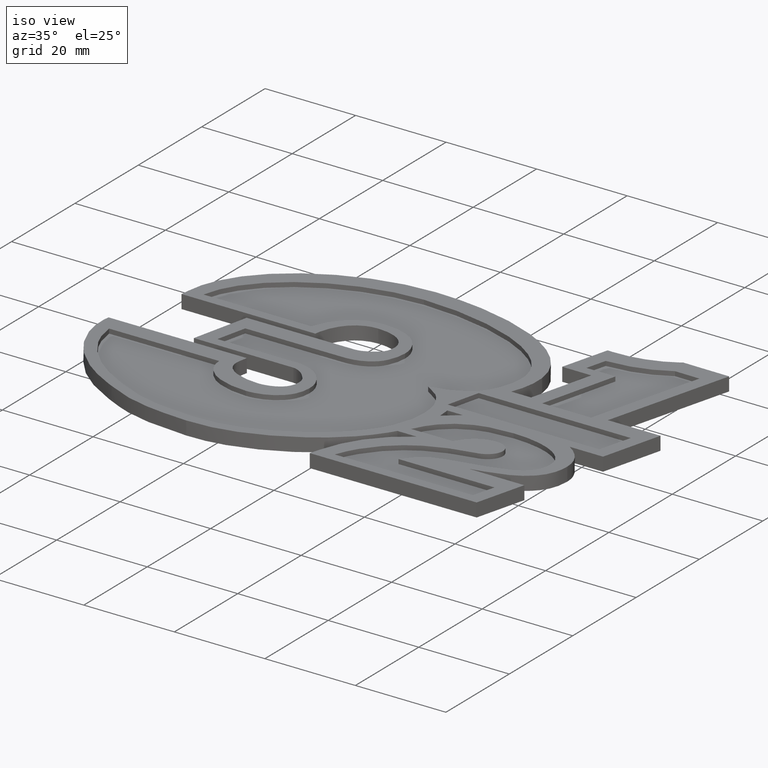
[diagram: clean part render]
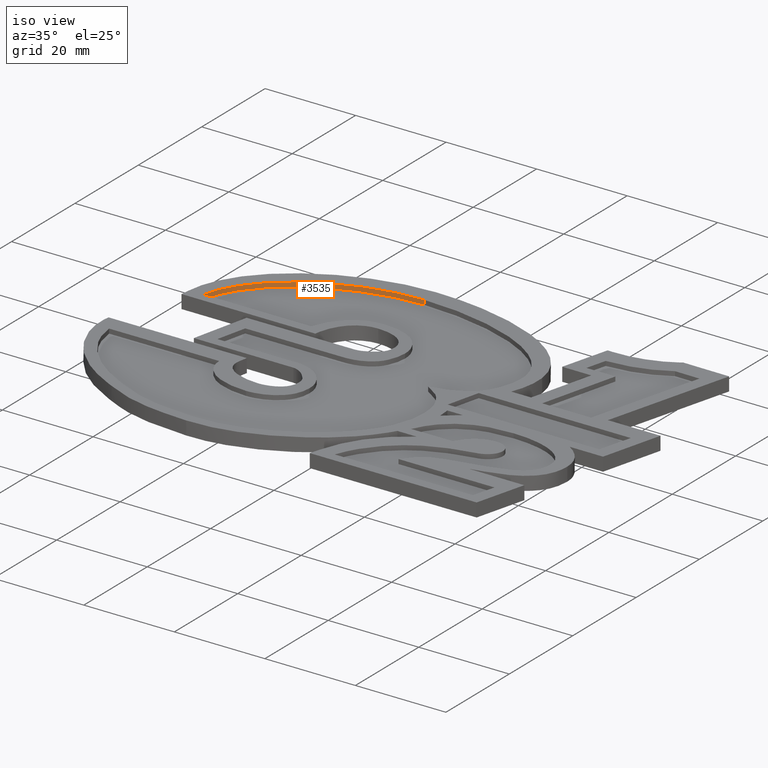
[diagram: same view with one face highlighted and labeled with its STEP entity id]
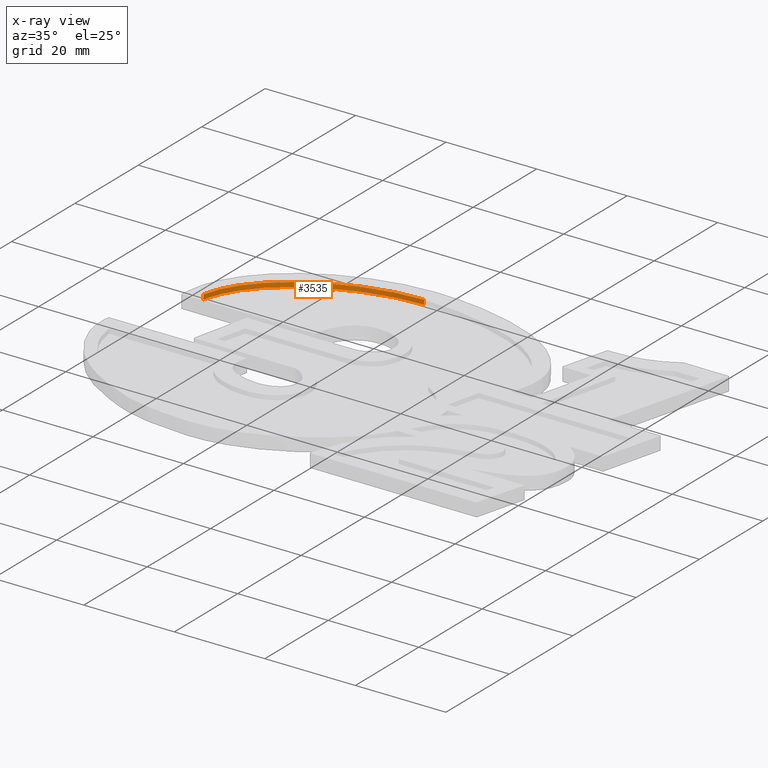
[diagram: x-ray of the same camera — body ghosted, the highlighted face saturated]
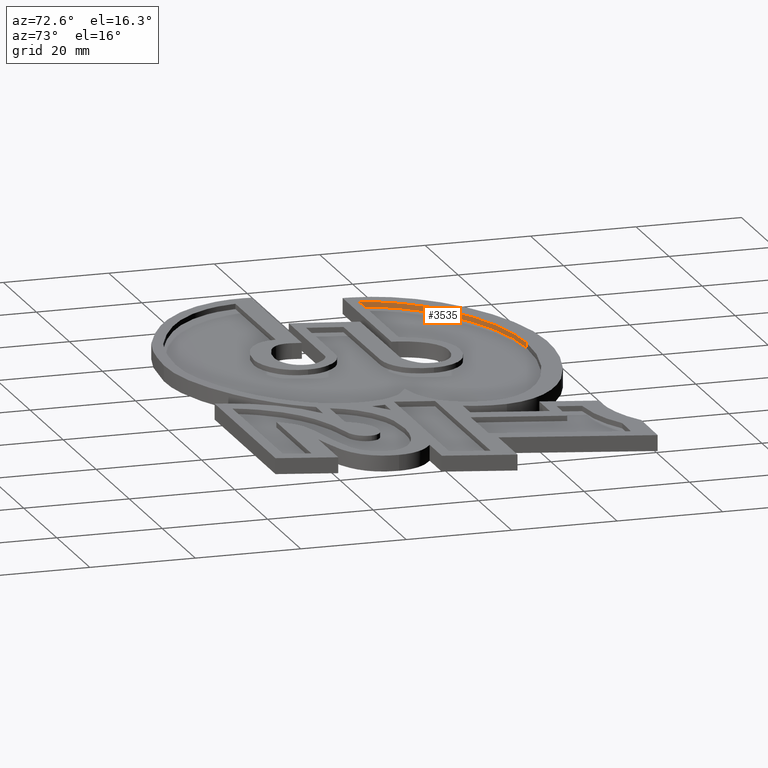
[diagram: same view with one face highlighted and labeled with its STEP entity id]
A machine part, iso view. The second image highlights one B-rep face of the part: STEP entity #3535.
The next image is the same camera in x-ray: the body ghosted, the highlighted face saturated — about 0% of this face is hidden behind the body in this view.
A second angle (auxiliary view) of the same face is appended — the face is thin or edge-on in the first view.
In plain terms, the highlighted face is a freeform B-spline surface patch.
Its self-contained STEP definition (entity closure, byte-faithful):
#66 = VERTEX_POINT ( 'NONE', #1086 ) ;
#67 = VERTEX_POINT ( 'NONE', #1087 ) ;
#70 = VERTEX_POINT ( 'NONE', #1090 ) ;
#90 = VERTEX_POINT ( 'NONE', #1110 ) ;
#209 = ORIENTED_EDGE ( 'NONE', *, *, #3595, .T. ) ;
#234 = ORIENTED_EDGE ( 'NONE', *, *, #3635, .F. ) ;
#245 = EDGE_LOOP ( 'NONE', ( #234, #265, #209, #349 ) ) ;
#265 = ORIENTED_EDGE ( 'NONE', *, *, #3602, .F. ) ;
#349 = ORIENTED_EDGE ( 'NONE', *, *, #3580, .T. ) ;
#440 = VECTOR ( 'NONE', #5089, 1000.000000000000000 ) ;
#466 = VECTOR ( 'NONE', #5022, 1000.000000000000000 ) ;
#1086 = CARTESIAN_POINT ( 'NONE',  ( 81.58468422439550200, 173.6564252330759400, 1.000000000000000000 ) ) ;
#1087 = CARTESIAN_POINT ( 'NONE',  ( 81.58468422439550200, 173.6564252330759400, -3.388131789017201400E-018 ) ) ;
#1090 = CARTESIAN_POINT ( 'NONE',  ( 47.59244383575813900, 152.6053415252310100, 1.000000000000000000 ) ) ;
#1110 = CARTESIAN_POINT ( 'NONE',  ( 47.59244383575813900, 152.6053415252310100, 0.0000000000000000000 ) ) ;
#1996 = B_SPLINE_SURFACE_WITH_KNOTS ( 'NONE', 3, 1, ( 
 ( #4696, #4709 ),
 ( #4711, #4712 ),
 ( #4713, #4714 ),
 ( #4715, #4716 ) ),
 .UNSPECIFIED., .F., .F., .F.,
 ( 4, 4 ),
 ( 2, 2 ),
 ( 10.00000000000000000, 11.00000000000000000 ),
 ( 0.0000000000000000000, 1.000000000000000000 ),
 .UNSPECIFIED. ) ;
#3535 = ADVANCED_FACE ( 'NONE', ( #4698 ), #1996, .T. ) ;
#3580 = EDGE_CURVE ( 'NONE', #70, #90, #5009, .T. ) ;
#3595 = EDGE_CURVE ( 'NONE', #66, #70, #4276, .T. ) ;
#3602 = EDGE_CURVE ( 'NONE', #66, #67, #5085, .T. ) ;
#3635 = EDGE_CURVE ( 'NONE', #67, #90, #4297, .T. ) ;
#4276 = B_SPLINE_CURVE_WITH_KNOTS ( 'NONE', 3,
 ( #5059, #5060, #5065, #5066 ),
 .UNSPECIFIED., .F., .F.,
 ( 4, 4 ),
 ( 10.00000000000000000, 11.00000000000000000 ),
 .UNSPECIFIED. ) ;
#4297 = B_SPLINE_CURVE_WITH_KNOTS ( 'NONE', 3,
 ( #5211, #5212, #5218, #5219 ),
 .UNSPECIFIED., .F., .F.,
 ( 4, 4 ),
 ( 10.00000000000000000, 11.00000000000000000 ),
 .UNSPECIFIED. ) ;
#4696 = CARTESIAN_POINT ( 'NONE',  ( 81.58468422439550200, 173.6564252330759400, 1.000000000000000000 ) ) ;
#4698 = FACE_OUTER_BOUND ( 'NONE', #245, .T. ) ;
#4709 = CARTESIAN_POINT ( 'NONE',  ( 81.58468422439550200, 173.6564252330759400, 0.0000000000000000000 ) ) ;
#4711 = CARTESIAN_POINT ( 'NONE',  ( 66.99883895894473100, 173.6564252330759400, 1.000000000000000000 ) ) ;
#4712 = CARTESIAN_POINT ( 'NONE',  ( 66.99883895894473100, 173.6564252330759400, 0.0000000000000000000 ) ) ;
#4713 = CARTESIAN_POINT ( 'NONE',  ( 49.99178058646039300, 164.7599829067409000, 1.000000000000000000 ) ) ;
#4714 = CARTESIAN_POINT ( 'NONE',  ( 49.99178058646039300, 164.7599829067409000, 0.0000000000000000000 ) ) ;
#4715 = CARTESIAN_POINT ( 'NONE',  ( 47.59244383575813900, 152.6053415252310100, 1.000000000000000000 ) ) ;
#4716 = CARTESIAN_POINT ( 'NONE',  ( 47.59244383575813900, 152.6053415252310100, 0.0000000000000000000 ) ) ;
#5009 = LINE ( 'NONE', #5021, #466 ) ;
#5021 = CARTESIAN_POINT ( 'NONE',  ( 47.59244383575813900, 152.6053415252310100, 1.000000000000000000 ) ) ;
#5022 = DIRECTION ( 'NONE',  ( -0.0000000000000000000, -0.0000000000000000000, -1.000000000000000000 ) ) ;
#5059 = CARTESIAN_POINT ( 'NONE',  ( 81.58468422439550200, 173.6564252330759400, 1.000000000000000000 ) ) ;
#5060 = CARTESIAN_POINT ( 'NONE',  ( 66.99883895894473100, 173.6564252330759400, 1.000000000000000000 ) ) ;
#5065 = CARTESIAN_POINT ( 'NONE',  ( 49.99178058646039300, 164.7599829067409000, 1.000000000000000000 ) ) ;
#5066 = CARTESIAN_POINT ( 'NONE',  ( 47.59244383575813900, 152.6053415252310100, 1.000000000000000000 ) ) ;
#5085 = LINE ( 'NONE', #5088, #440 ) ;
#5088 = CARTESIAN_POINT ( 'NONE',  ( 81.58468422439550200, 173.6564252330759400, 1.000000000000000000 ) ) ;
#5089 = DIRECTION ( 'NONE',  ( -0.0000000000000000000, -0.0000000000000000000, -1.000000000000000000 ) ) ;
#5211 = CARTESIAN_POINT ( 'NONE',  ( 81.58468422439550200, 173.6564252330759400, -3.388131789017201400E-018 ) ) ;
#5212 = CARTESIAN_POINT ( 'NONE',  ( 66.99883895894473100, 173.6564252330759400, -3.388131789017201400E-018 ) ) ;
#5218 = CARTESIAN_POINT ( 'NONE',  ( 49.99178058646039300, 164.7599829067409000, -3.388131789017201400E-018 ) ) ;
#5219 = CARTESIAN_POINT ( 'NONE',  ( 47.59244383575813900, 152.6053415252310100, 0.0000000000000000000 ) ) ;